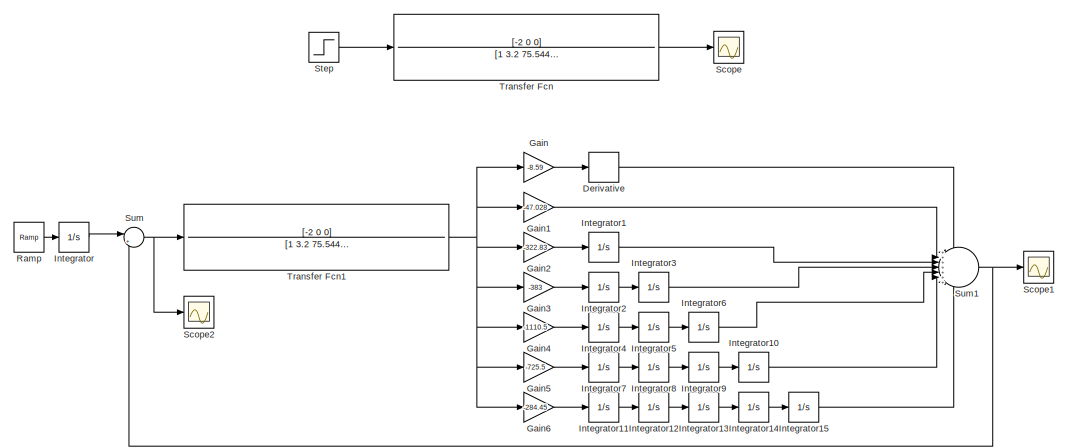
[diagram: root canvas - part 1/2, full width, top band]
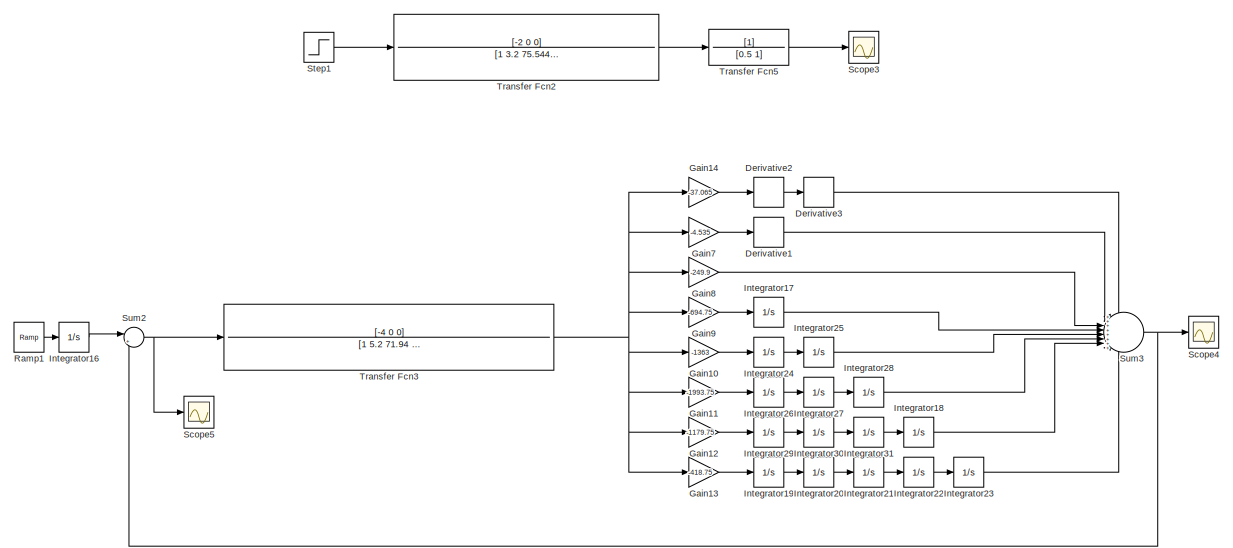
[diagram: root canvas - part 2/2, full width, bottom band]
MODEL slx_a82cc6d430d5
KIND model
CONFIG AbsTol = auto
CONFIG EnableMultiTasking = off
CONFIG FixedStep = auto
CONFIG MaxStep = auto
CONFIG MinStep = auto
CONFIG RelTol = 1e-3
CONFIG SampleTimeConstraint = Unconstrained
CONFIG SolverName = VariableStepAuto
CONFIG StartTime = 0.0
CONFIG StopTime = 20
BLOCK [Derivative] Derivative
BLOCK [Derivative] Derivative1
BLOCK [Derivative] Derivative2
BLOCK [Derivative] Derivative3
BLOCK [Gain] Gain
  Gain = -8.59
BLOCK [Gain] Gain1
  Gain = -47.028
BLOCK [Gain] Gain10
  Gain = -1363
BLOCK [Gain] Gain11
  Gain = -1993.75
BLOCK [Gain] Gain12
  Gain = -1179.75
BLOCK [Gain] Gain13
  Gain = -418.75
BLOCK [Gain] Gain14
  Gain = -37.065
BLOCK [Gain] Gain2
  Gain = -322.83
BLOCK [Gain] Gain3
  Gain = -383
BLOCK [Gain] Gain4
  Gain = -1110.5
BLOCK [Gain] Gain5
  Gain = -725.5
BLOCK [Gain] Gain6
  Gain = -284.45
BLOCK [Gain] Gain7
  Gain = -4.535
BLOCK [Gain] Gain8
  Gain = -249.9
BLOCK [Gain] Gain9
  Gain = -694.75
BLOCK [Integrator] Integrator
BLOCK [Integrator] Integrator1
BLOCK [Integrator] Integrator10
BLOCK [Integrator] Integrator11
BLOCK [Integrator] Integrator12
BLOCK [Integrator] Integrator13
BLOCK [Integrator] Integrator14
BLOCK [Integrator] Integrator15
BLOCK [Integrator] Integrator16
BLOCK [Integrator] Integrator17
BLOCK [Integrator] Integrator18
BLOCK [Integrator] Integrator19
BLOCK [Integrator] Integrator2
BLOCK [Integrator] Integrator20
BLOCK [Integrator] Integrator21
BLOCK [Integrator] Integrator22
BLOCK [Integrator] Integrator23
BLOCK [Integrator] Integrator24
BLOCK [Integrator] Integrator25
BLOCK [Integrator] Integrator26
BLOCK [Integrator] Integrator27
BLOCK [Integrator] Integrator28
BLOCK [Integrator] Integrator29
BLOCK [Integrator] Integrator3
BLOCK [Integrator] Integrator30
BLOCK [Integrator] Integrator31
BLOCK [Integrator] Integrator4
BLOCK [Integrator] Integrator5
BLOCK [Integrator] Integrator6
BLOCK [Integrator] Integrator7
BLOCK [Integrator] Integrator8
BLOCK [Integrator] Integrator9
BLOCK [Reference] Ramp  REF=simulink/Sources/Ramp
  SourceBlock = simulink/Sources/Ramp
  SourceType = Ramp
BLOCK [Reference] Ramp1  REF=simulink/Sources/Ramp
  SourceBlock = simulink/Sources/Ramp
  SourceType = Ramp
BLOCK [Scope] Scope
  Floating = off
  NumInputPorts = 1
  ScopeSpecificationString = Simulink.scopes.TimeScopeBlockCfg('CurrentConfiguration', extmgr.ConfigurationSet(extmgr.Configuration('Core','General UI',true),extmgr.Configuration('Core','Source UI',true),extmgr.Configuration('Sources','WiredSimulink',true),extmgr.Configuration('Visuals','Time Domain',true,'SerializedDisplays',{struct('MinYLimReal','-0.04674','MaxYLimReal','0.06621','YLabelReal','','MinYLimMag','0.00000','MaxY...<+1447ch>
BLOCK [Scope] Scope1
  Floating = off
  NumInputPorts = 1
  ScopeSpecificationString = Simulink.scopes.TimeScopeBlockCfg('CurrentConfiguration', extmgr.ConfigurationSet(extmgr.Configuration('Core','General UI',true),extmgr.Configuration('Core','Source UI',true),extmgr.Configuration('Sources','WiredSimulink',true,'DataLoggingVariableName','ScopeData1'),extmgr.Configuration('Visuals','Time Domain',true,'SerializedDisplays',{struct('MinYLimReal','-24.99196','MaxYLimReal','224.92761','Y...<+1488ch>
BLOCK [Scope] Scope2
  Floating = off
  NumInputPorts = 1
  ScopeSpecificationString = Simulink.scopes.TimeScopeBlockCfg('CurrentConfiguration', extmgr.ConfigurationSet(extmgr.Configuration('Core','General UI',true),extmgr.Configuration('Core','Source UI',true),extmgr.Configuration('Sources','WiredSimulink',true,'DataLoggingVariableName','ScopeData2'),extmgr.Configuration('Visuals','Time Domain',true,'SerializedDisplays',{struct('MinYLimReal','-0.1953','MaxYLimReal','0.73007','YLabe...<+1475ch>
BLOCK [Scope] Scope3
  Floating = off
  NumInputPorts = 1
  ScopeSpecificationString = Simulink.scopes.TimeScopeBlockCfg('CurrentConfiguration', extmgr.ConfigurationSet(extmgr.Configuration('Core','General UI',true),extmgr.Configuration('Core','Source UI',true),extmgr.Configuration('Sources','WiredSimulink',true,'DataLoggingVariableName','ScopeData3'),extmgr.Configuration('Visuals','Time Domain',true,'SerializedDisplays',{struct('MinYLimReal','-0.01886','MaxYLimReal','0.02438','YLab...<+1487ch>
BLOCK [Scope] Scope4
  Floating = off
  NumInputPorts = 1
  ScopeSpecificationString = Simulink.scopes.TimeScopeBlockCfg('CurrentConfiguration', extmgr.ConfigurationSet(extmgr.Configuration('Core','General UI',true),extmgr.Configuration('Core','Source UI',true),extmgr.Configuration('Sources','WiredSimulink',true,'DataLoggingVariableName','ScopeData4'),extmgr.Configuration('Visuals','Time Domain',true,'SerializedDisplays',{struct('MinYLimReal','-19869764609.13965','MaxYLimReal','9267...<+1554ch>
BLOCK [Scope] Scope5
  Floating = off
  NumInputPorts = 1
  ScopeSpecificationString = Simulink.scopes.TimeScopeBlockCfg('CurrentConfiguration', extmgr.ConfigurationSet(extmgr.Configuration('Core','General UI',true),extmgr.Configuration('Core','Source UI',true),extmgr.Configuration('Sources','WiredSimulink',true,'DataLoggingVariableName','ScopeData5'),extmgr.Configuration('Visuals','Time Domain',true,'SerializedDisplays',{struct('MinYLimReal','-9267433088.31069','MaxYLimReal','19869...<+1552ch>
BLOCK [Step] Step
  SampleTime = 0
  Time = 0
BLOCK [Step] Step1
  SampleTime = 0
  Time = 0
BLOCK [Sum] Sum
  Inputs = |+-
BLOCK [Sum] Sum1
  Inputs = +++++++
BLOCK [Sum] Sum2
  Inputs = |+-
BLOCK [Sum] Sum3
  Inputs = ++++++++
BLOCK [TransferFcn] Transfer Fcn
  Denominator = [1 3.2 75.544 89.24 981]
  Numerator = [-2 0 0]
BLOCK [TransferFcn] Transfer Fcn1
  Denominator = [1 3.2 75.544 89.24 981]
  Numerator = [-2 0 0]
BLOCK [TransferFcn] Transfer Fcn2
  Denominator = [1 3.2 75.544 89.24 981]
  Numerator = [-2 0 0]
BLOCK [TransferFcn] Transfer Fcn3
  Denominator = [1 5.2 71.94 240.4 1159.4 1962]
  Numerator = [-4 0 0]
BLOCK [TransferFcn] Transfer Fcn5
  Denominator = [0.5 1]
LINE Derivative1:1 -> Sum3:2
LINE Derivative2:1 -> Derivative3:1
LINE Derivative3:1 -> Sum3:1
LINE Derivative:1 -> Sum1:1
LINE Gain10:1 -> Integrator24:1
LINE Gain11:1 -> Integrator26:1
LINE Gain12:1 -> Integrator29:1
LINE Gain13:1 -> Integrator19:1
LINE Gain14:1 -> Derivative2:1
LINE Gain1:1 -> Sum1:2
LINE Gain2:1 -> Integrator1:1
LINE Gain3:1 -> Integrator2:1
LINE Gain4:1 -> Integrator4:1
LINE Gain5:1 -> Integrator7:1
LINE Gain6:1 -> Integrator11:1
LINE Gain7:1 -> Derivative1:1
LINE Gain8:1 -> Sum3:3
LINE Gain9:1 -> Integrator17:1
LINE Gain:1 -> Derivative:1
LINE Integrator10:1 -> Sum1:6
LINE Integrator11:1 -> Integrator12:1
LINE Integrator12:1 -> Integrator13:1
LINE Integrator13:1 -> Integrator14:1
LINE Integrator14:1 -> Integrator15:1
LINE Integrator15:1 -> Sum1:7
LINE Integrator16:1 -> Sum2:1
LINE Integrator17:1 -> Sum3:4
LINE Integrator18:1 -> Sum3:7
LINE Integrator19:1 -> Integrator20:1
LINE Integrator1:1 -> Sum1:3
LINE Integrator20:1 -> Integrator21:1
LINE Integrator21:1 -> Integrator22:1
LINE Integrator22:1 -> Integrator23:1
LINE Integrator23:1 -> Sum3:8
LINE Integrator24:1 -> Integrator25:1
LINE Integrator25:1 -> Sum3:5
LINE Integrator26:1 -> Integrator27:1
LINE Integrator27:1 -> Integrator28:1
LINE Integrator28:1 -> Sum3:6
LINE Integrator29:1 -> Integrator30:1
LINE Integrator2:1 -> Integrator3:1
LINE Integrator30:1 -> Integrator31:1
LINE Integrator31:1 -> Integrator18:1
LINE Integrator3:1 -> Sum1:4
LINE Integrator4:1 -> Integrator5:1
LINE Integrator5:1 -> Integrator6:1
LINE Integrator6:1 -> Sum1:5
LINE Integrator7:1 -> Integrator8:1
LINE Integrator8:1 -> Integrator9:1
LINE Integrator9:1 -> Integrator10:1
LINE Integrator:1 -> Sum:1
LINE Ramp1:1 -> Integrator16:1
LINE Ramp:1 -> Integrator:1
LINE Step1:1 -> Transfer Fcn2:1
LINE Step:1 -> Transfer Fcn:1
NET Sum1:1 -> Scope1:1, Sum:2
NET Sum2:1 -> Scope5:1, Transfer Fcn3:1
NET Sum3:1 -> Scope4:1, Sum2:2
NET Sum:1 -> Scope2:1, Transfer Fcn1:1
NET Transfer Fcn1:1 -> Gain1:1, Gain2:1, Gain3:1, Gain4:1, Gain5:1, Gain6:1, Gain:1
LINE Transfer Fcn2:1 -> Transfer Fcn5:1
NET Transfer Fcn3:1 -> Gain10:1, Gain11:1, Gain12:1, Gain13:1, Gain14:1, Gain7:1, Gain8:1, Gain9:1
LINE Transfer Fcn5:1 -> Scope3:1
LINE Transfer Fcn:1 -> Scope:1
note: NET lines group one-source signal fan-out (src -> all destinations, sorted); 1:1 wires keep LINE
